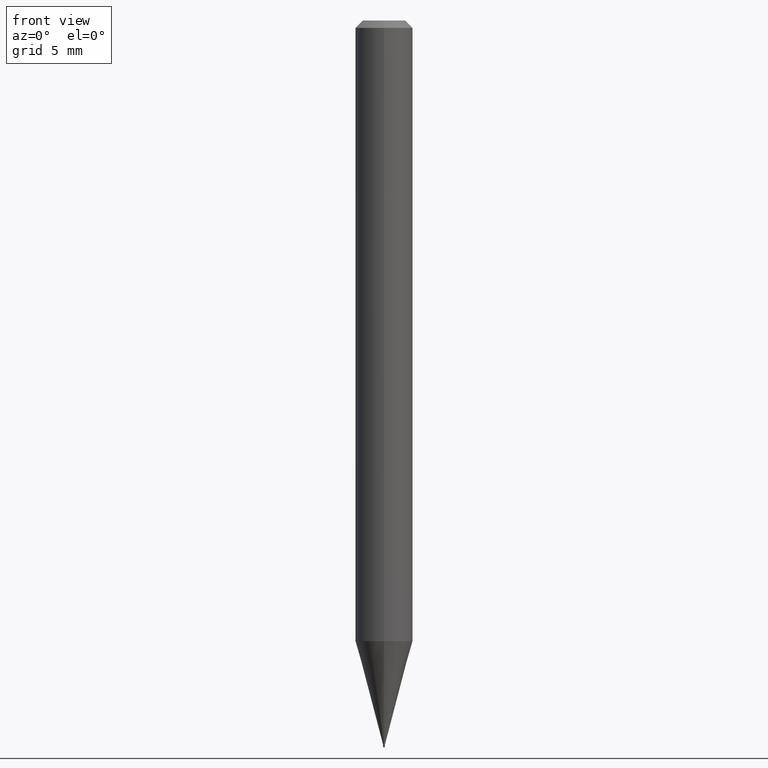
[diagram: clean part render]
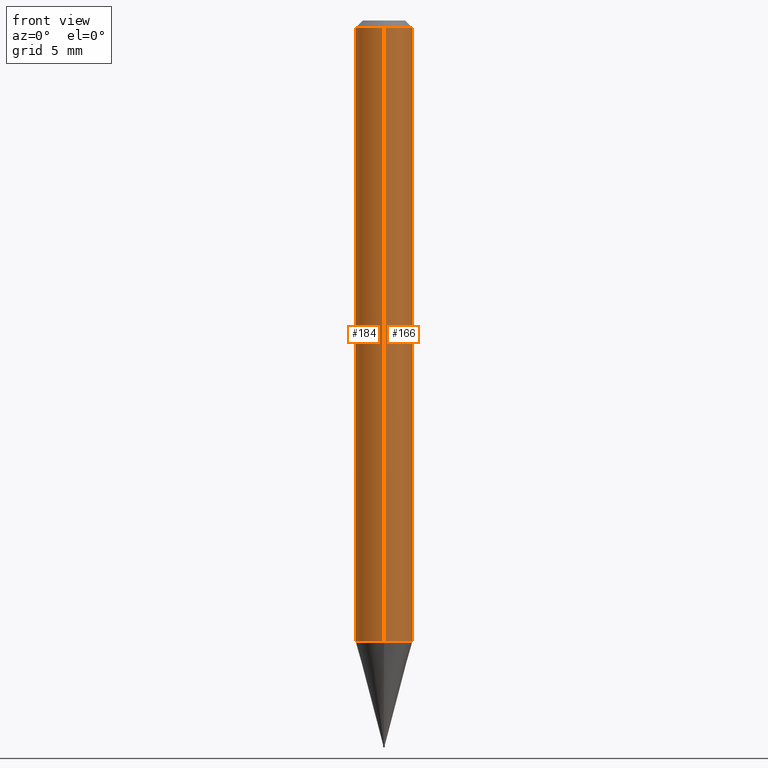
[diagram: same view with one multi-face feature highlighted, each face labeled with its STEP entity id]
A machine part, front view. The highlighted faces form ONE feature: a constant-radius fillet chain: 2 tangent blend faces with common blend radius 1.4999 mm. The faces share edges in the B-rep.
Their STEP definitions:
[1] entity #166 (Cylinder):
#5 = AXIS2_PLACEMENT_3D ( 'NONE', #329, #53, #482 ) ;
#20 = EDGE_CURVE ( 'NONE', #66, #426, #203, .T. ) ;
#37 = DIRECTION ( 'NONE',  ( -2.446328802231448422E-29, 3.490249775556891925E-15, 1.000000000000000000 ) ) ;
#53 = DIRECTION ( 'NONE',  ( -2.446328802231448422E-29, 3.490249775556891925E-15, 1.000000000000000000 ) ) ;
#66 = VERTEX_POINT ( 'NONE', #359 ) ;
#107 = DIRECTION ( 'NONE',  ( -2.446328802231448422E-29, 3.490249775556892319E-15, 1.000000000000000000 ) ) ;
#153 = VERTEX_POINT ( 'NONE', #408 ) ;
#157 = EDGE_LOOP ( 'NONE', ( #341, #304, #269, #339 ) ) ;
#160 = VECTOR ( 'NONE', #107, 39.37007874015748143 ) ;
#166 = ADVANCED_FACE ( 'NONE', ( #336 ), #403, .T. ) ;
#170 = CIRCLE ( 'NONE', #290, 0.05904999999999999832 ) ;
#173 = CARTESIAN_POINT ( 'NONE',  ( -4.123439461173739834E-16, -0.05904999999999999832, 2.060992492466344811E-16 ) ) ;
#181 = EDGE_CURVE ( 'NONE', #426, #382, #170, .T. ) ;
#188 = CARTESIAN_POINT ( 'NONE',  ( -4.123439461173736383E-16, -0.05905000000000005383, -0.01499999999999987454 ) ) ;
#189 = CIRCLE ( 'NONE', #274, 0.05904999999999999832 ) ;
#203 = LINE ( 'NONE', #173, #253 ) ;
#247 = CARTESIAN_POINT ( 'NONE',  ( 3.669493203347191865E-31, -5.235374663335366212E-17, -0.01500000000000008098 ) ) ;
#250 = DIRECTION ( 'NONE',  ( -6.982962677686265922E-15, -1.000000000000000000, 3.505890868245046092E-15 ) ) ;
#253 = VECTOR ( 'NONE', #471, 39.37007874015748143 ) ;
#269 = ORIENTED_EDGE ( 'NONE', *, *, #181, .F. ) ;
#274 = AXIS2_PLACEMENT_3D ( 'NONE', #346, #340, #349 ) ;
#290 = AXIS2_PLACEMENT_3D ( 'NONE', #247, #37, #250 ) ;
#294 = CARTESIAN_POINT ( 'NONE',  ( 4.195754854663390985E-16, 0.05904999999999999832, -2.060992492466344811E-16 ) ) ;
#304 = ORIENTED_EDGE ( 'NONE', *, *, #344, .T. ) ;
#306 = EDGE_CURVE ( 'NONE', #66, #153, #189, .T. ) ;
#329 = CARTESIAN_POINT ( 'NONE',  ( 0.000000000000000000, 0.000000000000000000, 0.000000000000000000 ) ) ;
#336 = FACE_OUTER_BOUND ( 'NONE', #157, .T. ) ;
#339 = ORIENTED_EDGE ( 'NONE', *, *, #20, .F. ) ;
#340 = DIRECTION ( 'NONE',  ( -2.446328802231448422E-29, 3.490249775556891925E-15, 1.000000000000000000 ) ) ;
#341 = ORIENTED_EDGE ( 'NONE', *, *, #306, .T. ) ;
#344 = EDGE_CURVE ( 'NONE', #153, #382, #510, .T. ) ;
#346 = CARTESIAN_POINT ( 'NONE',  ( 3.124206265976151613E-29, -4.457397635456953837E-15, -1.277099898887823048 ) ) ;
#349 = DIRECTION ( 'NONE',  ( -6.982962677686265922E-15, -1.000000000000000000, 4.626330217890369336E-15 ) ) ;
#359 = CARTESIAN_POINT ( 'NONE',  ( -4.123439461173428234E-16, -0.05905000000000444615, -1.277099898887822604 ) ) ;
#382 = VERTEX_POINT ( 'NONE', #501 ) ;
#403 = CYLINDRICAL_SURFACE ( 'NONE', #5, 0.05904999999999999832 ) ;
#408 = CARTESIAN_POINT ( 'NONE',  ( 4.195754854663702585E-16, 0.05904999999999554355, -1.277099898887823270 ) ) ;
#426 = VERTEX_POINT ( 'NONE', #188 ) ;
#471 = DIRECTION ( 'NONE',  ( -2.446328802231448422E-29, 3.490249775556892319E-15, 1.000000000000000000 ) ) ;
#482 = DIRECTION ( 'NONE',  ( -6.982962677686265922E-15, -1.000000000000000000, 3.490249775556892319E-15 ) ) ;
#501 = CARTESIAN_POINT ( 'NONE',  ( 4.195754854663705544E-16, 0.05904999999999994975, -0.01500000000000028741 ) ) ;
#510 = LINE ( 'NONE', #294, #160 ) ;
[2] entity #184 (Cylinder):
#1 = DIRECTION ( 'NONE',  ( -6.982962677686265922E-15, -1.000000000000000000, 3.490249775556892319E-15 ) ) ;
#14 = ORIENTED_EDGE ( 'NONE', *, *, #20, .T. ) ;
#20 = EDGE_CURVE ( 'NONE', #66, #426, #203, .T. ) ;
#21 = CARTESIAN_POINT ( 'NONE',  ( 3.669493203347191865E-31, -5.235374663335366212E-17, -0.01500000000000008098 ) ) ;
#65 = AXIS2_PLACEMENT_3D ( 'NONE', #220, #254, #223 ) ;
#66 = VERTEX_POINT ( 'NONE', #359 ) ;
#76 = DIRECTION ( 'NONE',  ( -2.446328802231448422E-29, 3.490249775556891925E-15, 1.000000000000000000 ) ) ;
#107 = DIRECTION ( 'NONE',  ( -2.446328802231448422E-29, 3.490249775556892319E-15, 1.000000000000000000 ) ) ;
#132 = EDGE_CURVE ( 'NONE', #382, #426, #194, .T. ) ;
#136 = DIRECTION ( 'NONE',  ( -6.982962677686265922E-15, -1.000000000000000000, 3.505890868245046092E-15 ) ) ;
#150 = ORIENTED_EDGE ( 'NONE', *, *, #451, .T. ) ;
#153 = VERTEX_POINT ( 'NONE', #408 ) ;
#160 = VECTOR ( 'NONE', #107, 39.37007874015748143 ) ;
#173 = CARTESIAN_POINT ( 'NONE',  ( -4.123439461173739834E-16, -0.05904999999999999832, 2.060992492466344811E-16 ) ) ;
#175 = ORIENTED_EDGE ( 'NONE', *, *, #132, .F. ) ;
#184 = ADVANCED_FACE ( 'NONE', ( #464 ), #469, .T. ) ;
#187 = DIRECTION ( 'NONE',  ( -2.446328802231448422E-29, 3.490249775556891925E-15, 1.000000000000000000 ) ) ;
#188 = CARTESIAN_POINT ( 'NONE',  ( -4.123439461173736383E-16, -0.05905000000000005383, -0.01499999999999987454 ) ) ;
#194 = CIRCLE ( 'NONE', #453, 0.05904999999999999832 ) ;
#203 = LINE ( 'NONE', #173, #253 ) ;
#208 = CARTESIAN_POINT ( 'NONE',  ( 0.000000000000000000, 0.000000000000000000, 0.000000000000000000 ) ) ;
#220 = CARTESIAN_POINT ( 'NONE',  ( 3.124206265976151613E-29, -4.457397635456953837E-15, -1.277099898887823048 ) ) ;
#223 = DIRECTION ( 'NONE',  ( -6.982962677686265922E-15, -1.000000000000000000, 4.626330217890369336E-15 ) ) ;
#253 = VECTOR ( 'NONE', #471, 39.37007874015748143 ) ;
#254 = DIRECTION ( 'NONE',  ( -2.446328802231448422E-29, 3.490249775556891925E-15, 1.000000000000000000 ) ) ;
#294 = CARTESIAN_POINT ( 'NONE',  ( 4.195754854663390985E-16, 0.05904999999999999832, -2.060992492466344811E-16 ) ) ;
#295 = AXIS2_PLACEMENT_3D ( 'NONE', #208, #76, #1 ) ;
#344 = EDGE_CURVE ( 'NONE', #153, #382, #510, .T. ) ;
#359 = CARTESIAN_POINT ( 'NONE',  ( -4.123439461173428234E-16, -0.05905000000000444615, -1.277099898887822604 ) ) ;
#382 = VERTEX_POINT ( 'NONE', #501 ) ;
#408 = CARTESIAN_POINT ( 'NONE',  ( 4.195754854663702585E-16, 0.05904999999999554355, -1.277099898887823270 ) ) ;
#412 = ORIENTED_EDGE ( 'NONE', *, *, #344, .F. ) ;
#424 = CIRCLE ( 'NONE', #65, 0.05904999999999999832 ) ;
#426 = VERTEX_POINT ( 'NONE', #188 ) ;
#451 = EDGE_CURVE ( 'NONE', #153, #66, #424, .T. ) ;
#453 = AXIS2_PLACEMENT_3D ( 'NONE', #21, #187, #136 ) ;
#461 = EDGE_LOOP ( 'NONE', ( #412, #150, #14, #175 ) ) ;
#464 = FACE_OUTER_BOUND ( 'NONE', #461, .T. ) ;
#469 = CYLINDRICAL_SURFACE ( 'NONE', #295, 0.05904999999999999832 ) ;
#471 = DIRECTION ( 'NONE',  ( -2.446328802231448422E-29, 3.490249775556892319E-15, 1.000000000000000000 ) ) ;
#501 = CARTESIAN_POINT ( 'NONE',  ( 4.195754854663705544E-16, 0.05904999999999994975, -0.01500000000000028741 ) ) ;
#510 = LINE ( 'NONE', #294, #160 ) ;